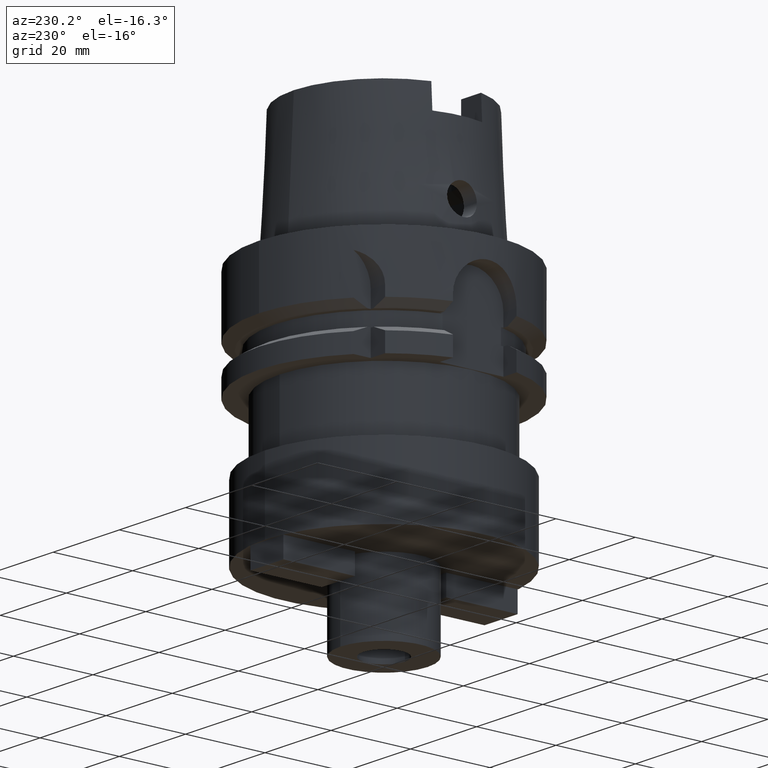
[diagram: clean part render]
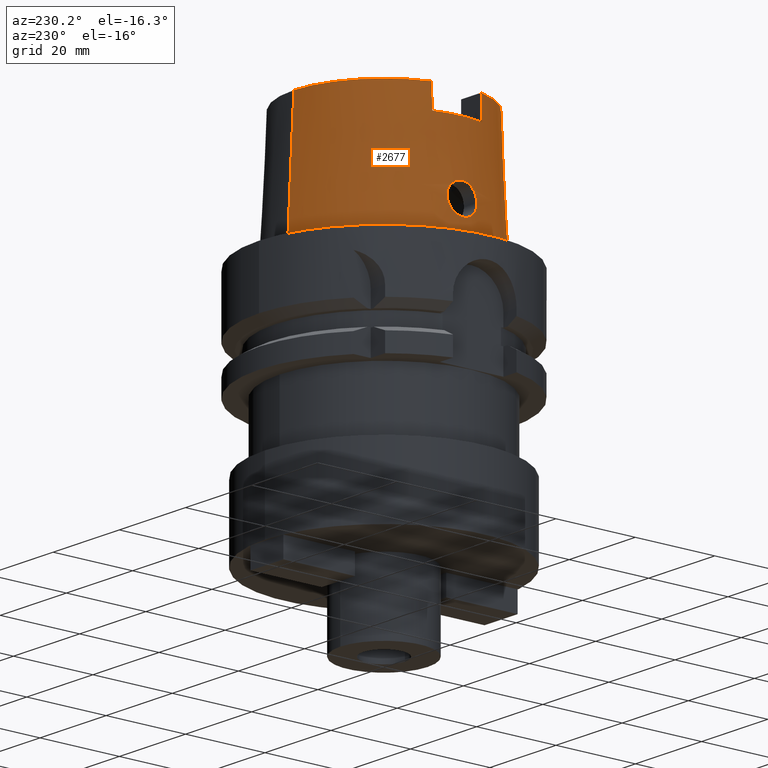
[diagram: same view with one face highlighted and labeled with its STEP entity id]
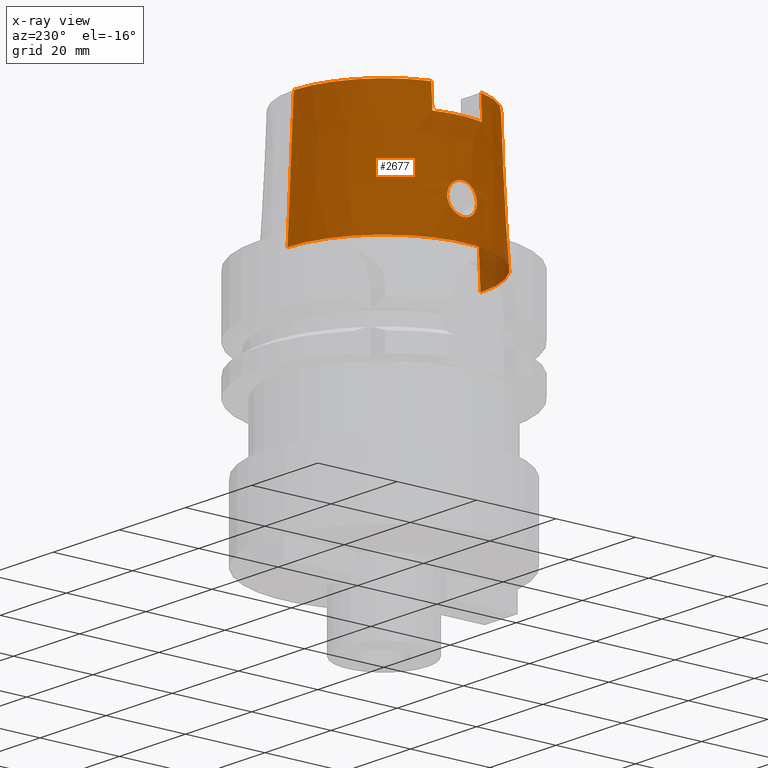
[diagram: x-ray of the same camera — body ghosted, the highlighted face saturated]
A machine part, auxiliary view. The second image highlights one B-rep face of the part: STEP entity #2677.
The next image is the same camera in x-ray: the body ghosted, the highlighted face saturated — about 3% of this face is hidden behind the body in this view.
In plain terms, the highlighted conical surface has half-angle 2.862 deg.
Its self-contained STEP definition (entity closure, byte-faithful):
#61=CARTESIAN_POINT('',(0.E0,0.E0,2.6E1));
#62=DIRECTION('',(0.E0,0.E0,-1.E0));
#63=DIRECTION('',(-9.621752876155E-1,-2.724311213903E-1,0.E0));
#64=AXIS2_PLACEMENT_3D('',#61,#62,#63);
#107=CARTESIAN_POINT('',(0.E0,0.E0,3.2E1));
#108=DIRECTION('',(0.E0,0.E0,-1.E0));
#109=DIRECTION('',(0.E0,-1.E0,0.E0));
#110=AXIS2_PLACEMENT_3D('',#107,#108,#109);
#180=CARTESIAN_POINT('',(0.E0,0.E0,3.2E1));
#181=DIRECTION('',(0.E0,0.E0,-1.E0));
#182=DIRECTION('',(-9.611492277717E-1,2.760292773492E-1,0.E0));
#183=AXIS2_PLACEMENT_3D('',#180,#181,#182);
#212=CARTESIAN_POINT('',(-2.183248717673E1,6.27E0,3.2E1));
#213=CARTESIAN_POINT('',(-2.186717206529E1,6.27E0,3.133327503497E1));
#214=CARTESIAN_POINT('',(-2.193652349223E1,6.27E0,2.999986376692E1));
#215=CARTESIAN_POINT('',(-2.204051301399E1,6.27E0,2.799986375667E1));
#216=CARTESIAN_POINT('',(-2.210981442606E1,6.27E0,2.666660835393E1));
#217=CARTESIAN_POINT('',(-2.214445626683E1,6.27E0,2.6E1));
#222=CARTESIAN_POINT('',(-2.214445626683E1,-6.27E0,2.6E1));
#223=CARTESIAN_POINT('',(-2.210981442606E1,-6.27E0,2.666660835394E1));
#224=CARTESIAN_POINT('',(-2.204051301399E1,-6.27E0,2.799986375668E1));
#225=CARTESIAN_POINT('',(-2.193652349223E1,-6.27E0,2.999986376693E1));
#226=CARTESIAN_POINT('',(-2.186717206529E1,-6.27E0,3.133327503497E1));
#227=CARTESIAN_POINT('',(-2.183248717673E1,-6.27E0,3.2E1));
#232=DIRECTION('',(0.E0,-4.993926899646E-2,-9.987522562738E-1));
#233=VECTOR('',#232,3.203997768114E1);
#234=CARTESIAN_POINT('',(0.E0,-2.271498175923E1,3.2E1));
#235=LINE('',#234,#233);
#239=CARTESIAN_POINT('',(-2.405252611747E1,0.E0,5.25E0));
#240=CARTESIAN_POINT('',(-2.405252611747E1,-3.241166392306E-1,5.25E0));
#241=CARTESIAN_POINT('',(-2.403485896663E1,-9.732771115646E-1,
5.334796038456E0));
#242=CARTESIAN_POINT('',(-2.396110314785E1,-1.881313224348E0,5.706687518341E0));
#243=CARTESIAN_POINT('',(-2.385405550878E1,-2.671714974886E0,6.307052837542E0));
#244=CARTESIAN_POINT('',(-2.373660523248E1,-3.279745155279E0,7.093454810066E0));
#245=CARTESIAN_POINT('',(-2.363237053549E1,-3.663784669929E0,8.015447212687E0));
#246=CARTESIAN_POINT('',(-2.356153259276E1,-3.793004577154E0,9.001053305218E0));
#247=CARTESIAN_POINT('',(-2.353287095115E1,-3.664196994240E0,9.979232873187E0));
#248=CARTESIAN_POINT('',(-2.354368601331E1,-3.287226317455E0,1.089166326170E1));
#249=CARTESIAN_POINT('',(-2.358180476331E1,-2.689664553375E0,1.167427835978E1));
#250=CARTESIAN_POINT('',(-2.362961158487E1,-1.903802173170E0,1.228124201498E1));
#251=CARTESIAN_POINT('',(-2.366789498681E1,-9.847199599914E-1,
1.266341232062E1));
#252=CARTESIAN_POINT('',(-2.367751368058E1,-3.281850765511E-1,1.275E1));
#253=CARTESIAN_POINT('',(-2.367751368058E1,0.E0,1.275E1));
#258=CARTESIAN_POINT('',(-2.367751368058E1,0.E0,1.275E1));
#259=CARTESIAN_POINT('',(-2.367751368058E1,3.271065762335E-1,1.275E1));
#260=CARTESIAN_POINT('',(-2.366795407700E1,9.820960818913E-1,1.266393203544E1));
#261=CARTESIAN_POINT('',(-2.362979889404E1,1.900355746056E0,1.228324915344E1));
#262=CARTESIAN_POINT('',(-2.358187859277E1,2.688608754963E0,1.167585066926E1));
#263=CARTESIAN_POINT('',(-2.354358955921E1,3.288682367660E0,1.088960920413E1));
#264=CARTESIAN_POINT('',(-2.353293336801E1,3.664392141692E0,9.977244787578E0));
#265=CARTESIAN_POINT('',(-2.356143117796E1,3.792227342656E0,9.005596532066E0));
#266=CARTESIAN_POINT('',(-2.363115998461E1,3.666678959544E0,8.030013070601E0));
#267=CARTESIAN_POINT('',(-2.373388774415E1,3.291293809285E0,7.114386700073E0));
#268=CARTESIAN_POINT('',(-2.385126622376E1,2.688926653726E0,6.323645958589E0));
#269=CARTESIAN_POINT('',(-2.395980253869E1,1.895006556886E0,5.713296207472E0));
#270=CARTESIAN_POINT('',(-2.403486159880E1,9.761043776371E-1,5.334744769205E0));
#271=CARTESIAN_POINT('',(-2.405252611747E1,3.244977435112E-1,5.25E0));
#272=CARTESIAN_POINT('',(-2.405252611747E1,0.E0,5.25E0));
#297=DIRECTION('',(0.E0,4.993926899646E-2,-9.987522562738E-1));
#298=VECTOR('',#297,3.203997768114E1);
#299=CARTESIAN_POINT('',(0.E0,2.271498175923E1,3.2E1));
#300=LINE('',#299,#298);
#366=CARTESIAN_POINT('',(0.E0,0.E0,-9.094947017729E-13));
#367=DIRECTION('',(0.E0,0.E0,1.E0));
#368=DIRECTION('',(0.E0,1.E0,0.E0));
#369=AXIS2_PLACEMENT_3D('',#366,#367,#368);
#2175=CARTESIAN_POINT('',(-2.214445626683E1,6.27E0,2.6E1));
#2176=VERTEX_POINT('',#2175);
#2177=VERTEX_POINT('',#212);
#2178=CARTESIAN_POINT('',(-2.214445626683E1,-6.27E0,2.6E1));
#2179=VERTEX_POINT('',#2178);
#2180=CARTESIAN_POINT('',(-2.183248717673E1,-6.27E0,3.2E1));
#2181=VERTEX_POINT('',#2180);
#2182=CARTESIAN_POINT('',(0.E0,2.271498175923E1,3.2E1));
#2183=VERTEX_POINT('',#2182);
#2192=CARTESIAN_POINT('',(0.E0,-2.271498175923E1,3.2E1));
#2193=VERTEX_POINT('',#2192);
#2194=CARTESIAN_POINT('',(0.E0,-2.431503482329E1,-6.465938895417E-13));
#2195=VERTEX_POINT('',#2194);
#2196=CARTESIAN_POINT('',(0.E0,2.431503482329E1,-9.094947017729E-13));
#2197=VERTEX_POINT('',#2196);
#2198=VERTEX_POINT('',#239);
#2199=VERTEX_POINT('',#253);
#2653=CARTESIAN_POINT('',(0.E0,0.E0,1.6E1));
#2654=DIRECTION('',(0.E0,0.E0,-1.E0));
#2655=DIRECTION('',(0.E0,-1.E0,0.E0));
#2656=AXIS2_PLACEMENT_3D('',#2653,#2654,#2655);
#2657=CONICAL_SURFACE('',#2656,2.351500829126E1,2.8625E0);
#2658=ORIENTED_EDGE('',*,*,#2521,.T.);
#2659=ORIENTED_EDGE('',*,*,#2536,.F.);
#2660=ORIENTED_EDGE('',*,*,#2550,.T.);
#2661=ORIENTED_EDGE('',*,*,#2569,.F.);
#2663=ORIENTED_EDGE('',*,*,#2662,.T.);
#2665=ORIENTED_EDGE('',*,*,#2664,.F.);
#2667=ORIENTED_EDGE('',*,*,#2666,.F.);
#2668=ORIENTED_EDGE('',*,*,#2643,.F.);
#2669=EDGE_LOOP('',(#2658,#2659,#2660,#2661,#2663,#2665,#2667,#2668));
#2670=FACE_OUTER_BOUND('',#2669,.F.);
#2672=ORIENTED_EDGE('',*,*,#2671,.T.);
#2674=ORIENTED_EDGE('',*,*,#2673,.T.);
#2675=EDGE_LOOP('',(#2672,#2674));
#2676=FACE_BOUND('',#2675,.F.);
#65=CIRCLE('',#64,2.301499170874E1);
#111=CIRCLE('',#110,2.271498175923E1);
#184=CIRCLE('',#183,2.271498175923E1);
#218=B_SPLINE_CURVE_WITH_KNOTS('',3,(#212,#213,#214,#215,#216,#217),
.UNSPECIFIED.,.F.,.F.,(4,1,1,4),(0.E0,3.333333333333E-1,6.666666666667E-1,1.E0),
.UNSPECIFIED.);
#228=B_SPLINE_CURVE_WITH_KNOTS('',3,(#222,#223,#224,#225,#226,#227),
.UNSPECIFIED.,.F.,.F.,(4,1,1,4),(0.E0,3.333333333333E-1,6.666666666667E-1,1.E0),
.UNSPECIFIED.);
#254=B_SPLINE_CURVE_WITH_KNOTS('',3,(#239,#240,#241,#242,#243,#244,#245,#246,
#247,#248,#249,#250,#251,#252,#253),.UNSPECIFIED.,.F.,.F.,(4,1,1,1,1,1,1,1,1,1,
1,1,4),(0.E0,8.333333333333E-2,1.666666666667E-1,2.5E-1,3.333333333333E-1,
4.166666666667E-1,5.E-1,5.833333333333E-1,6.666666666667E-1,7.5E-1,
8.333333333333E-1,9.166666666667E-1,1.E0),.UNSPECIFIED.);
#273=B_SPLINE_CURVE_WITH_KNOTS('',3,(#258,#259,#260,#261,#262,#263,#264,#265,
#266,#267,#268,#269,#270,#271,#272),.UNSPECIFIED.,.F.,.F.,(4,1,1,1,1,1,1,1,1,1,
1,1,4),(0.E0,8.333333333333E-2,1.666666666667E-1,2.5E-1,3.333333333333E-1,
4.166666666667E-1,5.E-1,5.833333333333E-1,6.666666666667E-1,7.5E-1,
8.333333333333E-1,9.166666666667E-1,1.E0),.UNSPECIFIED.);
#370=CIRCLE('',#369,2.431503482329E1);
#2521=EDGE_CURVE('',#2177,#2176,#218,.T.);
#2536=EDGE_CURVE('',#2179,#2176,#65,.T.);
#2550=EDGE_CURVE('',#2179,#2181,#228,.T.);
#2569=EDGE_CURVE('',#2193,#2181,#111,.T.);
#2643=EDGE_CURVE('',#2177,#2183,#184,.T.);
#2662=EDGE_CURVE('',#2193,#2195,#235,.T.);
#2664=EDGE_CURVE('',#2197,#2195,#370,.T.);
#2666=EDGE_CURVE('',#2183,#2197,#300,.T.);
#2671=EDGE_CURVE('',#2198,#2199,#254,.T.);
#2673=EDGE_CURVE('',#2199,#2198,#273,.T.);
#2677=ADVANCED_FACE('',(#2670,#2676),#2657,.T.);